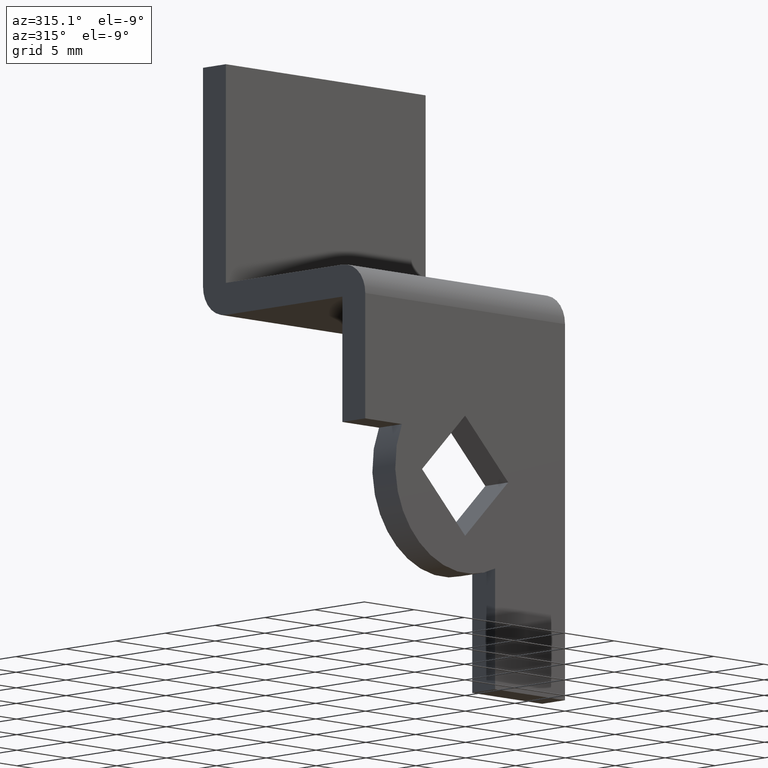
[diagram: clean part render]
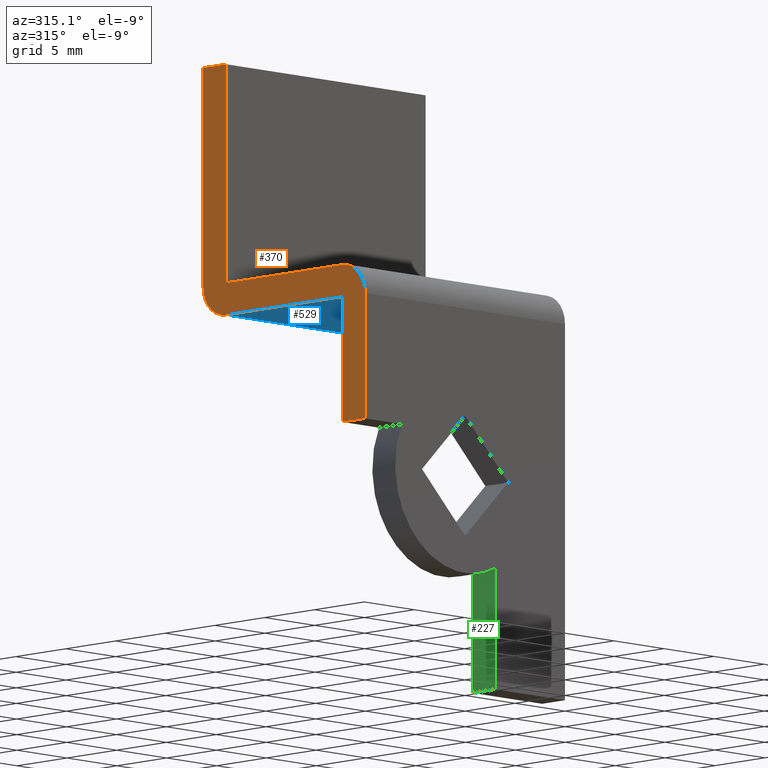
[diagram: same view with three faces highlighted in distinct colors, each labeled with its STEP entity id]
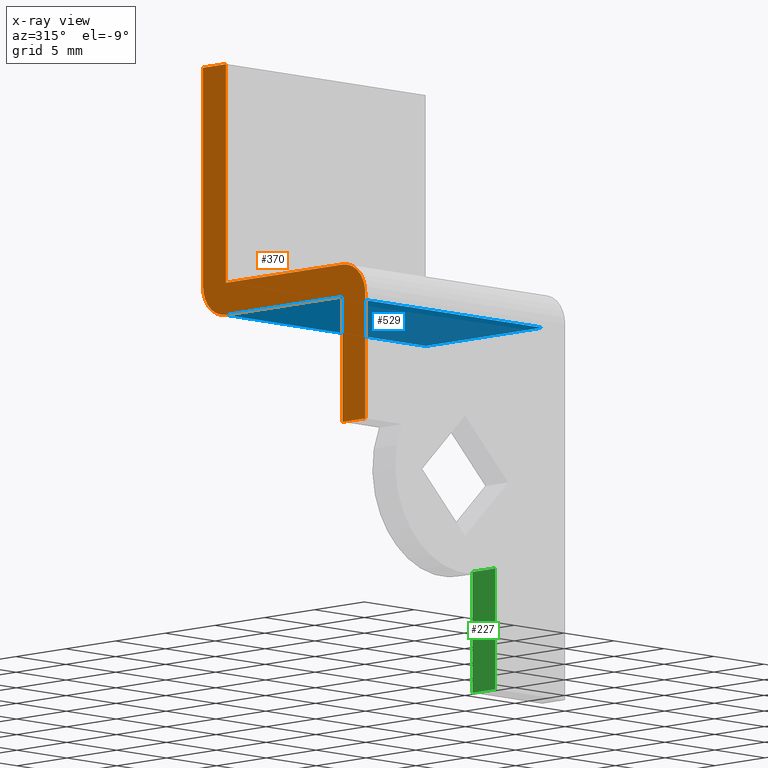
[diagram: x-ray of the same camera — body ghosted, the three highlighted faces saturated]
A machine part, auxiliary view with three faces highlighted in distinct colors.
The next image is the same camera in x-ray (body ghosted, the three faces saturated) — at least one of them is partly hidden behind the body in this view.
Their STEP definitions:

[orange] entity #370 — the highlighted face is a freeform B-spline surface patch.
#170=CARTESIAN_POINT('',(-10.000000000000121,0.0,3.0));
#171=VERTEX_POINT('',#170);
#177=CARTESIAN_POINT('',(-10.0,2.300003000000000,3.0));
#178=VERTEX_POINT('',#177);
#179=CARTESIAN_POINT('',(-10.0,2.300003000000000,3.0));
#180=CARTESIAN_POINT('',(-10.000000000000121,0.0,3.0));
#181=QUASI_UNIFORM_CURVE('',1,(#179,#180),.UNSPECIFIED.,.F.,.U.);
#182=EDGE_CURVE('',#178,#171,#181,.T.);
#281=CARTESIAN_POINT('',(-10.0,-0.814185118257431,31.348649947668761));
#282=CARTESIAN_POINT('',(-10.0,17.114188555457581,31.348649947668761));
#283=CARTESIAN_POINT('',(-10.0,-0.814185118257431,1.651349328134806));
#284=CARTESIAN_POINT('',(-10.0,17.114188555457581,1.651349328134806));
#285=B_SPLINE_SURFACE_WITH_KNOTS('',1,1,((#281,#283),(#282,#284)),.UNSPECIFIED.,.F.,.F.,.U.,(2,2),(2,2),(0.0,17.928373673715011),(0.0,29.697300619533959),.UNSPECIFIED.);
#286=CARTESIAN_POINT('',(-10.000000000000121,2.300003000000000,12.0));
#287=VERTEX_POINT('',#286);
#288=CARTESIAN_POINT('',(-10.0,2.300003000000000,3.0));
#289=CARTESIAN_POINT('',(-10.000000000000121,2.300003000000000,12.0));
#290=QUASI_UNIFORM_CURVE('',1,(#288,#289),.UNSPECIFIED.,.F.,.U.);
#291=EDGE_CURVE('',#178,#287,#290,.T.);
#292=ORIENTED_EDGE('',*,*,#291,.F.);
#293=ORIENTED_EDGE('',*,*,#182,.T.);
#294=CARTESIAN_POINT('',(-10.000000000000121,0.000003000000015,11.999999799287140));
#295=VERTEX_POINT('',#294);
#296=CARTESIAN_POINT('',(-10.000000000000121,0.000003000000015,11.999999799287140));
#297=CARTESIAN_POINT('',(-10.000000000000121,0.0,3.0));
#298=QUASI_UNIFORM_CURVE('',1,(#296,#297),.UNSPECIFIED.,.F.,.U.);
#299=EDGE_CURVE('',#295,#171,#298,.T.);
#300=ORIENTED_EDGE('',*,*,#299,.F.);
#301=CARTESIAN_POINT('',(-10.000000000000121,2.300003000000000,14.300002999999901));
#302=VERTEX_POINT('',#301);
#303=CARTESIAN_POINT('',(-10.000000000000121,2.300003000000000,14.300002999999901));
#304=CARTESIAN_POINT('',(-10.000000000000121,1.347311747754447,14.300002378679592));
#305=CARTESIAN_POINT('',(-10.000000000000121,0.673657332308234,13.626347025766290));
#306=CARTESIAN_POINT('',(-10.000000000000121,0.000002916862020,12.952691672853000));
#307=CARTESIAN_POINT('',(-10.000000000000121,0.000003000000015,11.999999799287140));
#315=(BOUNDED_CURVE()B_SPLINE_CURVE(2,(#303,#304,#305,#306,#307),.UNSPECIFIED.,.F.,.U.)B_SPLINE_CURVE_WITH_KNOTS((3,2,3),(0.0,0.500000000000000,1.0),.UNSPECIFIED.)CURVE()GEOMETRIC_REPRESENTATION_ITEM()RATIONAL_B_SPLINE_CURVE((1.0,0.923879524162429,1.0,0.923879524162429,1.0))REPRESENTATION_ITEM(''));
#316=EDGE_CURVE('',#302,#295,#315,.T.);
#317=ORIENTED_EDGE('',*,*,#316,.F.);
#318=CARTESIAN_POINT('',(-10.000000000000121,14.0,14.300002999999901));
#319=VERTEX_POINT('',#318);
#320=CARTESIAN_POINT('',(-10.000000000000121,14.0,14.300002999999901));
#321=CARTESIAN_POINT('',(-10.000000000000121,2.300003000000000,14.300002999999901));
#322=QUASI_UNIFORM_CURVE('',1,(#320,#321),.UNSPECIFIED.,.F.,.U.);
#323=EDGE_CURVE('',#319,#302,#322,.T.);
#324=ORIENTED_EDGE('',*,*,#323,.F.);
#325=CARTESIAN_POINT('',(-10.000000000000121,14.0,30.0));
#326=VERTEX_POINT('',#325);
#327=CARTESIAN_POINT('',(-10.000000000000121,14.0,30.0));
#328=CARTESIAN_POINT('',(-10.000000000000121,14.0,14.300002999999901));
#329=QUASI_UNIFORM_CURVE('',1,(#327,#328),.UNSPECIFIED.,.F.,.U.);
#330=EDGE_CURVE('',#326,#319,#329,.T.);
#331=ORIENTED_EDGE('',*,*,#330,.F.);
#332=CARTESIAN_POINT('',(-10.000000000000121,16.300003000000000,30.0));
#333=VERTEX_POINT('',#332);
#334=CARTESIAN_POINT('',(-10.000000000000121,16.300003000000000,30.0));
#335=CARTESIAN_POINT('',(-10.000000000000121,14.0,30.0));
#336=QUASI_UNIFORM_CURVE('',1,(#334,#335),.UNSPECIFIED.,.F.,.U.);
#337=EDGE_CURVE('',#333,#326,#336,.T.);
#338=ORIENTED_EDGE('',*,*,#337,.F.);
#339=CARTESIAN_POINT('',(-10.000000000000121,16.300000000000001,14.300003200712760));
#340=VERTEX_POINT('',#339);
#341=CARTESIAN_POINT('',(-10.000000000000121,16.300000000000001,14.300003200712760));
#342=CARTESIAN_POINT('',(-10.000000000000121,16.300003000000000,30.0));
#343=QUASI_UNIFORM_CURVE('',1,(#341,#342),.UNSPECIFIED.,.F.,.U.);
#344=EDGE_CURVE('',#340,#333,#343,.T.);
#345=ORIENTED_EDGE('',*,*,#344,.F.);
#346=CARTESIAN_POINT('',(-10.000000000000121,14.0,12.0));
#347=VERTEX_POINT('',#346);
#348=CARTESIAN_POINT('',(-10.000000000000121,14.0,12.0));
#349=CARTESIAN_POINT('',(-10.000000000000121,14.952691252245561,12.000000621320304));
#350=CARTESIAN_POINT('',(-10.000000000000121,15.626345667691769,12.673655974233601));
#351=CARTESIAN_POINT('',(-10.000000000000121,16.300000083137995,13.347311327146897));
#352=CARTESIAN_POINT('',(-10.000000000000121,16.300000000000001,14.300003200712760));
#360=(BOUNDED_CURVE()B_SPLINE_CURVE(2,(#348,#349,#350,#351,#352),.UNSPECIFIED.,.F.,.U.)B_SPLINE_CURVE_WITH_KNOTS((3,2,3),(0.0,0.500000000000000,1.0),.UNSPECIFIED.)CURVE()GEOMETRIC_REPRESENTATION_ITEM()RATIONAL_B_SPLINE_CURVE((1.0,0.923879524162429,1.0,0.923879524162429,1.0))REPRESENTATION_ITEM(''));
#361=EDGE_CURVE('',#347,#340,#360,.T.);
#362=ORIENTED_EDGE('',*,*,#361,.F.);
#363=CARTESIAN_POINT('',(-10.000000000000121,2.300003000000000,12.0));
#364=CARTESIAN_POINT('',(-10.000000000000121,14.0,12.0));
#365=QUASI_UNIFORM_CURVE('',1,(#363,#364),.UNSPECIFIED.,.F.,.U.);
#366=EDGE_CURVE('',#287,#347,#365,.T.);
#367=ORIENTED_EDGE('',*,*,#366,.F.);
#368=EDGE_LOOP('',(#292,#293,#300,#317,#324,#331,#338,#345,#362,#367));
#369=FACE_OUTER_BOUND('',#368,.T.);
#370=ADVANCED_FACE('',(#369),#285,.T.);

[blue] entity #529 — the highlighted face is a freeform B-spline surface patch.
#286=CARTESIAN_POINT('',(-10.000000000000121,2.300003000000000,12.0));
#287=VERTEX_POINT('',#286);
#346=CARTESIAN_POINT('',(-10.000000000000121,14.0,12.0));
#347=VERTEX_POINT('',#346);
#363=CARTESIAN_POINT('',(-10.000000000000121,2.300003000000000,12.0));
#364=CARTESIAN_POINT('',(-10.000000000000121,14.0,12.0));
#365=QUASI_UNIFORM_CURVE('',1,(#363,#364),.UNSPECIFIED.,.F.,.U.);
#366=EDGE_CURVE('',#287,#347,#365,.T.);
#430=CARTESIAN_POINT('',(10.0,2.300003000000000,12.0));
#431=VERTEX_POINT('',#430);
#437=CARTESIAN_POINT('',(10.0,14.0,12.0));
#438=VERTEX_POINT('',#437);
#439=CARTESIAN_POINT('',(10.0,2.300003000000000,12.0));
#440=CARTESIAN_POINT('',(10.0,14.0,12.0));
#441=QUASI_UNIFORM_CURVE('',1,(#439,#440),.UNSPECIFIED.,.F.,.U.);
#442=EDGE_CURVE('',#431,#438,#441,.T.);
#506=CARTESIAN_POINT('',(10.0,14.0,12.0));
#507=CARTESIAN_POINT('',(-10.000000000000121,14.0,12.0));
#508=QUASI_UNIFORM_CURVE('',1,(#506,#507),.UNSPECIFIED.,.F.,.U.);
#509=EDGE_CURVE('',#438,#347,#508,.T.);
#514=CARTESIAN_POINT('',(-10.998999961236249,1.715588172526865,12.0));
#515=CARTESIAN_POINT('',(10.999000497677930,1.715588172526865,12.0));
#516=CARTESIAN_POINT('',(-10.998999961236249,14.584415141291510,12.0));
#517=CARTESIAN_POINT('',(10.999000497677930,14.584415141291510,12.0));
#518=B_SPLINE_SURFACE_WITH_KNOTS('',1,1,((#514,#516),(#515,#517)),.UNSPECIFIED.,.F.,.F.,.U.,(2,2),(2,2),(0.0,21.998000458914181),(0.0,12.868826968764649),.UNSPECIFIED.);
#519=ORIENTED_EDGE('',*,*,#366,.T.);
#520=ORIENTED_EDGE('',*,*,#509,.F.);
#521=ORIENTED_EDGE('',*,*,#442,.F.);
#522=CARTESIAN_POINT('',(10.0,2.300003000000000,12.0));
#523=CARTESIAN_POINT('',(-10.000000000000121,2.300003000000000,12.0));
#524=QUASI_UNIFORM_CURVE('',1,(#522,#523),.UNSPECIFIED.,.F.,.U.);
#525=EDGE_CURVE('',#431,#287,#524,.T.);
#526=ORIENTED_EDGE('',*,*,#525,.T.);
#527=EDGE_LOOP('',(#519,#520,#521,#526));
#528=FACE_OUTER_BOUND('',#527,.T.);
#529=ADVANCED_FACE('',(#528),#518,.F.);

[green] entity #227 — the highlighted face is a freeform B-spline surface patch.
#192=CARTESIAN_POINT('',(3.0,-0.114885145392148,-5.891223970153591));
#193=CARTESIAN_POINT('',(3.0,-0.114885145392148,-15.433338340104349));
#194=CARTESIAN_POINT('',(3.0,2.414888207083036,-5.891223970153592));
#195=CARTESIAN_POINT('',(3.0,2.414888207083036,-15.433338340104349));
#196=B_SPLINE_SURFACE_WITH_KNOTS('',1,1,((#192,#194),(#193,#195)),.UNSPECIFIED.,.F.,.F.,.U.,(2,2),(2,2),(0.0,9.542114369950756),(0.0,2.529773352475184),.UNSPECIFIED.);
#197=CARTESIAN_POINT('',(3.0,2.300003000000000,-15.0));
#198=VERTEX_POINT('',#197);
#199=CARTESIAN_POINT('',(3.0,0.0,-15.0));
#200=VERTEX_POINT('',#199);
#201=CARTESIAN_POINT('',(3.0,2.300003000000000,-15.0));
#202=CARTESIAN_POINT('',(3.0,0.0,-15.0));
#203=QUASI_UNIFORM_CURVE('',1,(#201,#202),.UNSPECIFIED.,.F.,.U.);
#204=EDGE_CURVE('',#198,#200,#203,.T.);
#205=ORIENTED_EDGE('',*,*,#204,.T.);
#206=CARTESIAN_POINT('',(3.0,0.0,-6.324562000000100));
#207=VERTEX_POINT('',#206);
#208=CARTESIAN_POINT('',(3.0,0.0,-15.0));
#209=CARTESIAN_POINT('',(3.0,0.0,-6.324562000000100));
#210=QUASI_UNIFORM_CURVE('',1,(#208,#209),.UNSPECIFIED.,.F.,.U.);
#211=EDGE_CURVE('',#200,#207,#210,.T.);
#212=ORIENTED_EDGE('',*,*,#211,.T.);
#213=CARTESIAN_POINT('',(3.0,2.300003000000000,-6.324562000000100));
#214=VERTEX_POINT('',#213);
#215=CARTESIAN_POINT('',(3.0,2.300003000000000,-6.324562000000100));
#216=CARTESIAN_POINT('',(3.0,0.0,-6.324562000000100));
#217=QUASI_UNIFORM_CURVE('',1,(#215,#216),.UNSPECIFIED.,.F.,.U.);
#218=EDGE_CURVE('',#214,#207,#217,.T.);
#219=ORIENTED_EDGE('',*,*,#218,.F.);
#220=CARTESIAN_POINT('',(3.0,2.300003000000000,-15.0));
#221=CARTESIAN_POINT('',(3.0,2.300003000000000,-6.324562000000100));
#222=QUASI_UNIFORM_CURVE('',1,(#220,#221),.UNSPECIFIED.,.F.,.U.);
#223=EDGE_CURVE('',#198,#214,#222,.T.);
#224=ORIENTED_EDGE('',*,*,#223,.F.);
#225=EDGE_LOOP('',(#205,#212,#219,#224));
#226=FACE_OUTER_BOUND('',#225,.T.);
#227=ADVANCED_FACE('',(#226),#196,.F.);